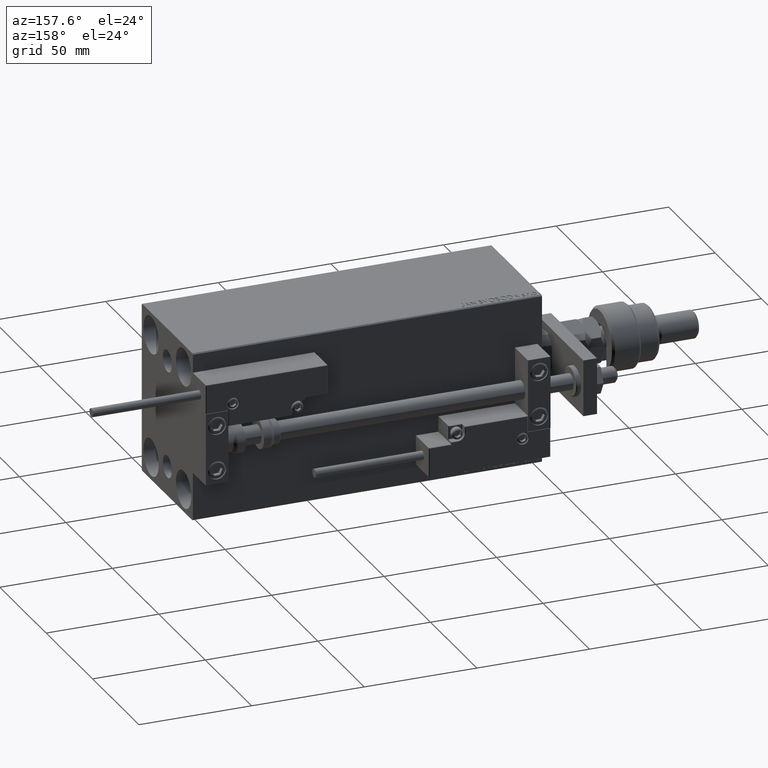
[diagram: clean part render]
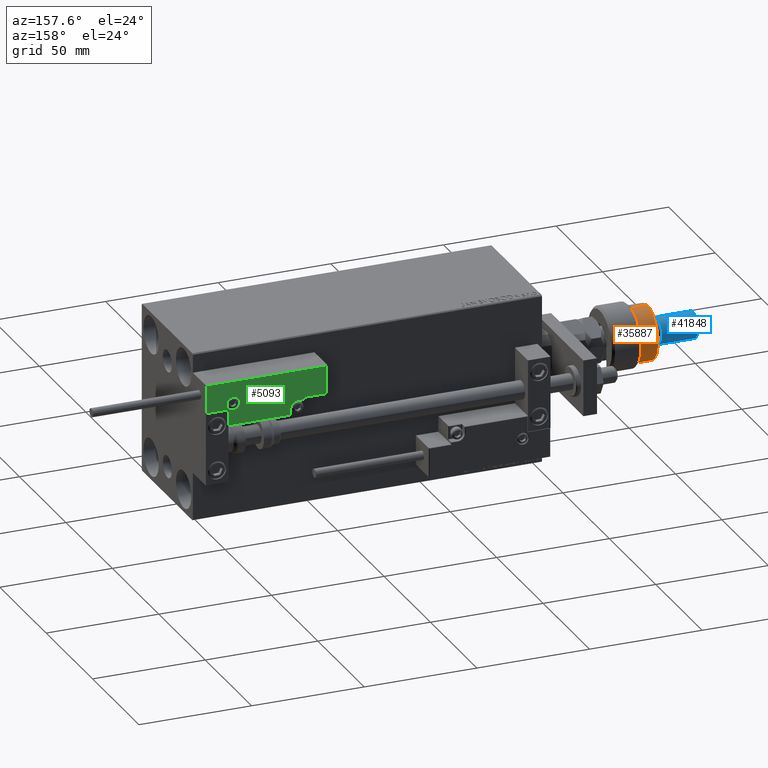
[diagram: same view with three faces highlighted in distinct colors, each labeled with its STEP entity id]
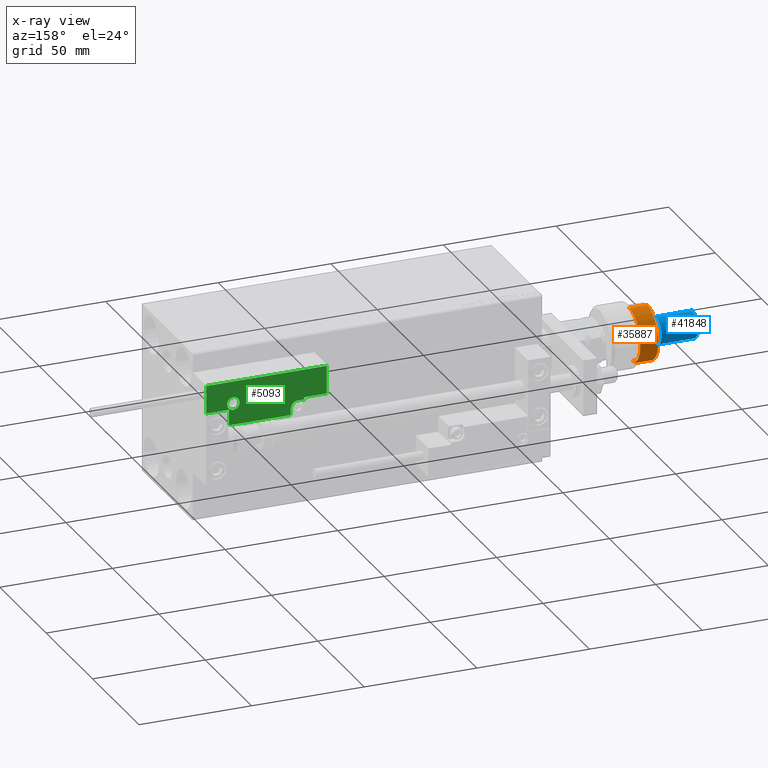
[diagram: x-ray of the same camera — body ghosted, the three highlighted faces saturated]
A machine part, auxiliary view with three faces highlighted in distinct colors.
The next image is the same camera in x-ray (body ghosted, the three faces saturated) — at least one of them is partly hidden behind the body in this view.
Their STEP definitions:

[orange] entity #35887 — the highlighted cylindrical surface (edge-blend (fillet) strip) has radius 12 mm, axis along (1, -0, -0).
#224 = CARTESIAN_POINT ( 'NONE',  ( 0.000000000000000000, 0.000000000000000000, 22.00000000000000000 ) ) ;
#1012 = CYLINDRICAL_SURFACE ( 'NONE', #48425, 12.00000000000000178 ) ;
#1145 = EDGE_CURVE ( 'NONE', #32329, #29369, #25488, .T. ) ;
#4631 = EDGE_CURVE ( 'NONE', #51505, #16986, #42629, .T. ) ;
#4879 = DIRECTION ( 'NONE',  ( 0.000000000000000000, 0.000000000000000000, -1.000000000000000000 ) ) ;
#5833 = VECTOR ( 'NONE', #42384, 1000.000000000000000 ) ;
#6446 = DIRECTION ( 'NONE',  ( 0.000000000000000000, 0.000000000000000000, 1.000000000000000000 ) ) ;
#8891 = DIRECTION ( 'NONE',  ( 0.000000000000000000, 0.000000000000000000, -1.000000000000000000 ) ) ;
#11956 = FACE_OUTER_BOUND ( 'NONE', #25056, .T. ) ;
#12026 = LINE ( 'NONE', #44551, #23525 ) ;
#12354 = CARTESIAN_POINT ( 'NONE',  ( 0.000000000000000000, 0.000000000000000000, 14.50000000000000000 ) ) ;
#13153 = DIRECTION ( 'NONE',  ( -1.000000000000000000, 0.000000000000000000, 0.000000000000000000 ) ) ;
#13186 = ORIENTED_EDGE ( 'NONE', *, *, #1145, .F. ) ;
#14040 = ORIENTED_EDGE ( 'NONE', *, *, #28894, .T. ) ;
#14355 = CARTESIAN_POINT ( 'NONE',  ( -10.39230484541326760, 6.000000000000000000, 13.00000000000000000 ) ) ;
#14862 = LINE ( 'NONE', #19391, #48960 ) ;
#15856 = AXIS2_PLACEMENT_3D ( 'NONE', #20902, #4879, #24636 ) ;
#16986 = VERTEX_POINT ( 'NONE', #14355 ) ;
#19264 = CARTESIAN_POINT ( 'NONE',  ( 12.00000000000000178, 1.469576158976824144E-15, 13.00000000000000000 ) ) ;
#19391 = CARTESIAN_POINT ( 'NONE',  ( 12.00000000000000178, 1.469576158976824144E-15, 22.00000000000000000 ) ) ;
#20902 = CARTESIAN_POINT ( 'NONE',  ( 0.000000000000000000, 0.000000000000000000, 20.99999999999998224 ) ) ;
#22066 = AXIS2_PLACEMENT_3D ( 'NONE', #12354, #8891, #13153 ) ;
#23525 = VECTOR ( 'NONE', #32695, 1000.000000000000000 ) ;
#24272 = EDGE_CURVE ( 'NONE', #41634, #51505, #14862, .T. ) ;
#24636 = DIRECTION ( 'NONE',  ( 1.000000000000000000, 0.000000000000000000, 0.000000000000000000 ) ) ;
#25056 = EDGE_LOOP ( 'NONE', ( #41373, #32083, #32031, #14040, #13186, #45242 ) ) ;
#25488 = CIRCLE ( 'NONE', #22066, 12.00000000000000178 ) ;
#25683 = CARTESIAN_POINT ( 'NONE',  ( 0.000000000000000000, 0.000000000000000000, 13.00000000000000000 ) ) ;
#28489 = DIRECTION ( 'NONE',  ( -0.000000000000000000, -0.000000000000000000, -1.000000000000000000 ) ) ;
#28894 = EDGE_CURVE ( 'NONE', #16986, #29369, #12026, .T. ) ;
#29276 = EDGE_CURVE ( 'NONE', #34643, #41634, #51591, .T. ) ;
#29369 = VERTEX_POINT ( 'NONE', #46456 ) ;
#30138 = LINE ( 'NONE', #49859, #5833 ) ;
#32031 = ORIENTED_EDGE ( 'NONE', *, *, #4631, .T. ) ;
#32083 = ORIENTED_EDGE ( 'NONE', *, *, #24272, .T. ) ;
#32329 = VERTEX_POINT ( 'NONE', #40205 ) ;
#32500 = DIRECTION ( 'NONE',  ( -1.000000000000000000, 0.000000000000000000, 0.000000000000000000 ) ) ;
#32695 = DIRECTION ( 'NONE',  ( 0.000000000000000000, 0.000000000000000000, 1.000000000000000000 ) ) ;
#34643 = VERTEX_POINT ( 'NONE', #50282 ) ;
#35887 = ADVANCED_FACE ( 'NONE', ( #11956 ), #1012, .T. ) ;
#38972 = DIRECTION ( 'NONE',  ( 1.000000000000000000, 0.000000000000000000, 0.000000000000000000 ) ) ;
#40044 = AXIS2_PLACEMENT_3D ( 'NONE', #25683, #6446, #38972 ) ;
#40205 = CARTESIAN_POINT ( 'NONE',  ( -12.00000000000000178, 0.000000000000000000, 14.50000000000000000 ) ) ;
#41373 = ORIENTED_EDGE ( 'NONE', *, *, #29276, .T. ) ;
#41634 = VERTEX_POINT ( 'NONE', #42041 ) ;
#42041 = CARTESIAN_POINT ( 'NONE',  ( 12.00000000000000178, 1.469576158976824144E-15, 20.99999999999998224 ) ) ;
#42384 = DIRECTION ( 'NONE',  ( -0.000000000000000000, -0.000000000000000000, -1.000000000000000000 ) ) ;
#42629 = CIRCLE ( 'NONE', #40044, 12.00000000000000178 ) ;
#44551 = CARTESIAN_POINT ( 'NONE',  ( -10.39230484541326760, 6.000000000000000000, 22.00000000000000000 ) ) ;
#45242 = ORIENTED_EDGE ( 'NONE', *, *, #49767, .F. ) ;
#46456 = CARTESIAN_POINT ( 'NONE',  ( -10.39230484541326582, 5.999999999999998224, 14.50000000000000000 ) ) ;
#48425 = AXIS2_PLACEMENT_3D ( 'NONE', #224, #28489, #32500 ) ;
#48427 = DIRECTION ( 'NONE',  ( -0.000000000000000000, -0.000000000000000000, -1.000000000000000000 ) ) ;
#48960 = VECTOR ( 'NONE', #48427, 1000.000000000000000 ) ;
#49767 = EDGE_CURVE ( 'NONE', #34643, #32329, #30138, .T. ) ;
#49859 = CARTESIAN_POINT ( 'NONE',  ( -12.00000000000000178, 0.000000000000000000, 22.00000000000000000 ) ) ;
#50282 = CARTESIAN_POINT ( 'NONE',  ( -12.00000000000000178, 0.000000000000000000, 20.99999999999998224 ) ) ;
#51505 = VERTEX_POINT ( 'NONE', #19264 ) ;
#51591 = CIRCLE ( 'NONE', #15856, 12.00000000000000178 ) ;

[blue] entity #41848 — the highlighted cylindrical surface (edge-blend (fillet) strip) has radius 6 mm, axis along (1, -0, -0).
#222 = DIRECTION ( 'NONE',  ( -0.000000000000000000, -0.000000000000000000, -1.000000000000000000 ) ) ;
#356 = VERTEX_POINT ( 'NONE', #8620 ) ;
#843 = ORIENTED_EDGE ( 'NONE', *, *, #38413, .T. ) ;
#1702 = VERTEX_POINT ( 'NONE', #17503 ) ;
#1736 = AXIS2_PLACEMENT_3D ( 'NONE', #46134, #18140, #9870 ) ;
#1822 = EDGE_CURVE ( 'NONE', #24750, #1702, #50804, .T. ) ;
#2944 = ORIENTED_EDGE ( 'NONE', *, *, #1822, .T. ) ;
#8620 = CARTESIAN_POINT ( 'NONE',  ( -6.000000000000000888, 0.000000000000000000, 40.99999999999997868 ) ) ;
#9390 = VERTEX_POINT ( 'NONE', #12791 ) ;
#9714 = DIRECTION ( 'NONE',  ( -0.000000000000000000, -0.000000000000000000, -1.000000000000000000 ) ) ;
#9870 = DIRECTION ( 'NONE',  ( 1.000000000000000000, 0.000000000000000000, 0.000000000000000000 ) ) ;
#12221 = DIRECTION ( 'NONE',  ( 0.000000000000000000, 0.000000000000000000, -1.000000000000000000 ) ) ;
#12791 = CARTESIAN_POINT ( 'NONE',  ( -6.000000000000000888, 0.000000000000000000, 24.99999999999999645 ) ) ;
#13022 = CARTESIAN_POINT ( 'NONE',  ( 0.000000000000000000, 0.000000000000000000, 40.99999999999997868 ) ) ;
#13212 = VECTOR ( 'NONE', #222, 1000.000000000000000 ) ;
#16927 = CYLINDRICAL_SURFACE ( 'NONE', #35808, 6.000000000000000888 ) ;
#17021 = DIRECTION ( 'NONE',  ( 1.000000000000000000, 0.000000000000000000, 0.000000000000000000 ) ) ;
#17503 = CARTESIAN_POINT ( 'NONE',  ( 6.000000000000000888, 7.347880794884120722E-16, 24.99999999999999645 ) ) ;
#17982 = EDGE_CURVE ( 'NONE', #356, #9390, #40479, .T. ) ;
#18140 = DIRECTION ( 'NONE',  ( -0.000000000000000000, -0.000000000000000000, 1.000000000000000000 ) ) ;
#22032 = CARTESIAN_POINT ( 'NONE',  ( 6.000000000000000888, 7.347880794884120722E-16, 41.99999999999999289 ) ) ;
#22561 = DIRECTION ( 'NONE',  ( -0.000000000000000000, -0.000000000000000000, -1.000000000000000000 ) ) ;
#24750 = VERTEX_POINT ( 'NONE', #38737 ) ;
#28064 = VECTOR ( 'NONE', #22561, 1000.000000000000000 ) ;
#28412 = ORIENTED_EDGE ( 'NONE', *, *, #36613, .T. ) ;
#32416 = FACE_OUTER_BOUND ( 'NONE', #42074, .T. ) ;
#35413 = ORIENTED_EDGE ( 'NONE', *, *, #17982, .F. ) ;
#35808 = AXIS2_PLACEMENT_3D ( 'NONE', #48655, #9714, #37983 ) ;
#36572 = CIRCLE ( 'NONE', #41670, 6.000000000000000888 ) ;
#36613 = EDGE_CURVE ( 'NONE', #356, #24750, #36572, .T. ) ;
#36759 = CARTESIAN_POINT ( 'NONE',  ( -6.000000000000000888, 0.000000000000000000, 41.99999999999999289 ) ) ;
#37983 = DIRECTION ( 'NONE',  ( -1.000000000000000000, 0.000000000000000000, 0.000000000000000000 ) ) ;
#38413 = EDGE_CURVE ( 'NONE', #1702, #9390, #42608, .T. ) ;
#38737 = CARTESIAN_POINT ( 'NONE',  ( 6.000000000000000888, 7.347880794884120722E-16, 40.99999999999997868 ) ) ;
#40479 = LINE ( 'NONE', #36759, #13212 ) ;
#41670 = AXIS2_PLACEMENT_3D ( 'NONE', #13022, #12221, #17021 ) ;
#41848 = ADVANCED_FACE ( 'NONE', ( #32416 ), #16927, .T. ) ;
#42074 = EDGE_LOOP ( 'NONE', ( #28412, #2944, #843, #35413 ) ) ;
#42608 = CIRCLE ( 'NONE', #1736, 6.000000000000000888 ) ;
#46134 = CARTESIAN_POINT ( 'NONE',  ( 0.000000000000000000, 0.000000000000000000, 24.99999999999999645 ) ) ;
#48655 = CARTESIAN_POINT ( 'NONE',  ( 0.000000000000000000, 0.000000000000000000, 41.99999999999999289 ) ) ;
#50804 = LINE ( 'NONE', #22032, #28064 ) ;

[green] entity #5093 — the highlighted planar face has unit normal (0, 1, -0).
#39 = ORIENTED_EDGE ( 'NONE', *, *, #1993, .T. ) ;
#252 = ORIENTED_EDGE ( 'NONE', *, *, #17324, .T. ) ;
#821 = DIRECTION ( 'NONE',  ( 0.000000000000000000, 1.000000000000000000, -0.000000000000000000 ) ) ;
#1794 = FACE_BOUND ( 'NONE', #9652, .T. ) ;
#1993 = EDGE_CURVE ( 'NONE', #9210, #2941, #25195, .T. ) ;
#2077 = VERTEX_POINT ( 'NONE', #41970 ) ;
#2941 = VERTEX_POINT ( 'NONE', #5959 ) ;
#3347 = VECTOR ( 'NONE', #24662, 1000.000000000000000 ) ;
#3432 = DIRECTION ( 'NONE',  ( 0.000000000000000000, -0.000000000000000000, -1.000000000000000000 ) ) ;
#3548 = ORIENTED_EDGE ( 'NONE', *, *, #39250, .T. ) ;
#3552 = LINE ( 'NONE', #30789, #15715 ) ;
#3606 = EDGE_CURVE ( 'NONE', #6357, #17274, #4254, .T. ) ;
#4254 = LINE ( 'NONE', #33057, #22172 ) ;
#5093 = ADVANCED_FACE ( 'NONE', ( #1794, #34331 ), #50312, .T. ) ;
#5124 = VERTEX_POINT ( 'NONE', #50047 ) ;
#5160 = VECTOR ( 'NONE', #38353, 1000.000000000000000 ) ;
#5650 = EDGE_CURVE ( 'NONE', #2077, #6357, #33288, .T. ) ;
#5959 = CARTESIAN_POINT ( 'NONE',  ( -26.69999999999994600, 7.300000000000005151, 14.00000000000000000 ) ) ;
#5961 = EDGE_LOOP ( 'NONE', ( #52205, #3548, #11988, #7608, #47449, #37252, #34534, #9452, #252, #39, #27596 ) ) ;
#6124 = CARTESIAN_POINT ( 'NONE',  ( -16.69999999999999218, 7.300000000000003375, 14.00000000000000000 ) ) ;
#6327 = CARTESIAN_POINT ( 'NONE',  ( 10.69999999999999929, 3.000000000000003109, 14.00000000000000000 ) ) ;
#6357 = VERTEX_POINT ( 'NONE', #45736 ) ;
#7608 = ORIENTED_EDGE ( 'NONE', *, *, #5650, .T. ) ;
#7945 = DIRECTION ( 'NONE',  ( 0.000000000000000000, -1.000000000000000000, 0.000000000000000000 ) ) ;
#9210 = VERTEX_POINT ( 'NONE', #44257 ) ;
#9452 = ORIENTED_EDGE ( 'NONE', *, *, #38253, .T. ) ;
#9652 = EDGE_LOOP ( 'NONE', ( #28429, #24269 ) ) ;
#11816 = LINE ( 'NONE', #19303, #26663 ) ;
#11988 = ORIENTED_EDGE ( 'NONE', *, *, #23195, .T. ) ;
#12028 = CARTESIAN_POINT ( 'NONE',  ( 26.70000000000006324, 20.00000000000001776, 14.00000000000000000 ) ) ;
#12970 = LINE ( 'NONE', #26282, #35854 ) ;
#14079 = EDGE_CURVE ( 'NONE', #2941, #20225, #11816, .T. ) ;
#14527 = VECTOR ( 'NONE', #23077, 1000.000000000000000 ) ;
#14547 = AXIS2_PLACEMENT_3D ( 'NONE', #18132, #34395, #38911 ) ;
#14557 = VERTEX_POINT ( 'NONE', #40157 ) ;
#14934 = VERTEX_POINT ( 'NONE', #40299 ) ;
#15108 = LINE ( 'NONE', #6327, #42994 ) ;
#15288 = EDGE_CURVE ( 'NONE', #45566, #32755, #19887, .T. ) ;
#15715 = VECTOR ( 'NONE', #47033, 1000.000000000000000 ) ;
#17274 = VERTEX_POINT ( 'NONE', #39551 ) ;
#17324 = EDGE_CURVE ( 'NONE', #14557, #9210, #3552, .T. ) ;
#18132 = CARTESIAN_POINT ( 'NONE',  ( 13.99999999999999822, 3.000000000000002665, 14.00000000000000000 ) ) ;
#18896 = VECTOR ( 'NONE', #7945, 1000.000000000000000 ) ;
#19303 = CARTESIAN_POINT ( 'NONE',  ( -16.99999999999999289, 7.300000000000003375, 14.00000000000000000 ) ) ;
#19887 = CIRCLE ( 'NONE', #33513, 2.800000000000000266 ) ;
#20225 = VERTEX_POINT ( 'NONE', #6124 ) ;
#22072 = DIRECTION ( 'NONE',  ( 1.000000000000000000, 0.000000000000000000, 0.000000000000000000 ) ) ;
#22172 = VECTOR ( 'NONE', #49038, 1000.000000000000000 ) ;
#22339 = DIRECTION ( 'NONE',  ( -0.000000000000000000, 0.000000000000000000, 1.000000000000000000 ) ) ;
#22608 = DIRECTION ( 'NONE',  ( -0.000000000000000000, 1.000000000000000000, -0.000000000000000000 ) ) ;
#23077 = DIRECTION ( 'NONE',  ( 1.000000000000000000, -0.000000000000000000, 0.000000000000000000 ) ) ;
#23195 = EDGE_CURVE ( 'NONE', #43293, #2077, #15108, .T. ) ;
#23552 = EDGE_CURVE ( 'NONE', #32755, #45566, #31940, .T. ) ;
#24104 = DIRECTION ( 'NONE',  ( 1.000000000000000000, -1.734723475976815230E-16, 0.000000000000000000 ) ) ;
#24269 = ORIENTED_EDGE ( 'NONE', *, *, #15288, .T. ) ;
#24548 = CARTESIAN_POINT ( 'NONE',  ( 10.69999999999999929, 0.3000000000000032085, 14.00000000000000000 ) ) ;
#24662 = DIRECTION ( 'NONE',  ( -8.006416042969869188E-16, -1.000000000000000000, 0.000000000000000000 ) ) ;
#25195 = LINE ( 'NONE', #37452, #3347 ) ;
#25465 = CARTESIAN_POINT ( 'NONE',  ( -11.99999999999994849, 9.800000000000004263, 14.00000000000000000 ) ) ;
#25572 = LINE ( 'NONE', #46081, #5160 ) ;
#26021 = DIRECTION ( 'NONE',  ( 1.000000000000000000, -1.734723475976796001E-16, 0.000000000000000000 ) ) ;
#26282 = CARTESIAN_POINT ( 'NONE',  ( 27.00000000000006395, 7.300000000000007816, 14.00000000000000000 ) ) ;
#26663 = VECTOR ( 'NONE', #24104, 1000.000000000000000 ) ;
#27596 = ORIENTED_EDGE ( 'NONE', *, *, #14079, .T. ) ;
#28378 = DIRECTION ( 'NONE',  ( 0.000000000000000000, -0.000000000000000000, -1.000000000000000000 ) ) ;
#28429 = ORIENTED_EDGE ( 'NONE', *, *, #23552, .T. ) ;
#30329 = CARTESIAN_POINT ( 'NONE',  ( 0.000000000000000000, 0.000000000000000000, 14.00000000000000000 ) ) ;
#30789 = CARTESIAN_POINT ( 'NONE',  ( -26.99999999999993605, 19.70000000000002061, 14.00000000000000000 ) ) ;
#31195 = CARTESIAN_POINT ( 'NONE',  ( -14.79999999999994920, 9.800000000000004263, 14.00000000000000000 ) ) ;
#31940 = CIRCLE ( 'NONE', #50638, 2.800000000000000266 ) ;
#32642 = CARTESIAN_POINT ( 'NONE',  ( -14.79999999999994920, 9.800000000000004263, 14.00000000000000000 ) ) ;
#32755 = VERTEX_POINT ( 'NONE', #25465 ) ;
#33057 = CARTESIAN_POINT ( 'NONE',  ( 17.00000000000000000, 6.300000000000003375, 14.00000000000000000 ) ) ;
#33288 = CIRCLE ( 'NONE', #14547, 3.299999999999997158 ) ;
#33513 = AXIS2_PLACEMENT_3D ( 'NONE', #31195, #3432, #43954 ) ;
#34153 = AXIS2_PLACEMENT_3D ( 'NONE', #30329, #22339, #22072 ) ;
#34331 = FACE_OUTER_BOUND ( 'NONE', #5961, .T. ) ;
#34395 = DIRECTION ( 'NONE',  ( 0.000000000000000000, -0.000000000000000000, -1.000000000000000000 ) ) ;
#34534 = ORIENTED_EDGE ( 'NONE', *, *, #39000, .T. ) ;
#35067 = CARTESIAN_POINT ( 'NONE',  ( 11.00000000000000000, 0.3000000000000032085, 14.00000000000000000 ) ) ;
#35812 = VECTOR ( 'NONE', #821, 1000.000000000000000 ) ;
#35854 = VECTOR ( 'NONE', #26021, 1000.000000000000000 ) ;
#36420 = CARTESIAN_POINT ( 'NONE',  ( -17.59999999999994813, 9.800000000000004263, 14.00000000000000000 ) ) ;
#37252 = ORIENTED_EDGE ( 'NONE', *, *, #39651, .T. ) ;
#37452 = CARTESIAN_POINT ( 'NONE',  ( -26.69999999999994600, 7.000000000000005329, 14.00000000000000000 ) ) ;
#37628 = LINE ( 'NONE', #12028, #35812 ) ;
#38253 = EDGE_CURVE ( 'NONE', #5124, #14557, #37628, .T. ) ;
#38353 = DIRECTION ( 'NONE',  ( 9.912705577010318647E-16, 1.000000000000000000, 0.000000000000000000 ) ) ;
#38911 = DIRECTION ( 'NONE',  ( 1.000000000000000000, 0.000000000000000000, 0.000000000000000000 ) ) ;
#39000 = EDGE_CURVE ( 'NONE', #44703, #5124, #12970, .T. ) ;
#39052 = LINE ( 'NONE', #35067, #14527 ) ;
#39250 = EDGE_CURVE ( 'NONE', #14934, #43293, #39052, .T. ) ;
#39353 = CARTESIAN_POINT ( 'NONE',  ( 16.69999999999999929, 7.300000000000009592, 14.00000000000000000 ) ) ;
#39551 = CARTESIAN_POINT ( 'NONE',  ( 16.69999999999999929, 6.300000000000003375, 14.00000000000000000 ) ) ;
#39651 = EDGE_CURVE ( 'NONE', #17274, #44703, #25572, .T. ) ;
#39830 = DIRECTION ( 'NONE',  ( 1.000000000000000000, 0.000000000000000000, 0.000000000000000000 ) ) ;
#40157 = CARTESIAN_POINT ( 'NONE',  ( 26.70000000000006324, 19.70000000000001705, 14.00000000000000000 ) ) ;
#40299 = CARTESIAN_POINT ( 'NONE',  ( -16.69999999999999218, 0.3000000000000032085, 14.00000000000000000 ) ) ;
#41970 = CARTESIAN_POINT ( 'NONE',  ( 10.69999999999999929, 3.000000000000003109, 14.00000000000000000 ) ) ;
#42994 = VECTOR ( 'NONE', #22608, 1000.000000000000000 ) ;
#43293 = VERTEX_POINT ( 'NONE', #24548 ) ;
#43954 = DIRECTION ( 'NONE',  ( 1.000000000000000000, 0.000000000000000000, 0.000000000000000000 ) ) ;
#44257 = CARTESIAN_POINT ( 'NONE',  ( -26.69999999999993534, 19.70000000000002061, 14.00000000000000000 ) ) ;
#44466 = CARTESIAN_POINT ( 'NONE',  ( -16.69999999999999218, 3.252606517456513302E-15, 14.00000000000000000 ) ) ;
#44703 = VERTEX_POINT ( 'NONE', #39353 ) ;
#45267 = EDGE_CURVE ( 'NONE', #20225, #14934, #47672, .T. ) ;
#45566 = VERTEX_POINT ( 'NONE', #36420 ) ;
#45736 = CARTESIAN_POINT ( 'NONE',  ( 13.99999999999999822, 6.300000000000001599, 14.00000000000000000 ) ) ;
#46081 = CARTESIAN_POINT ( 'NONE',  ( 16.69999999999999929, 7.000000000000009770, 14.00000000000000000 ) ) ;
#47033 = DIRECTION ( 'NONE',  ( -1.000000000000000000, 6.424901762877063495E-17, -0.000000000000000000 ) ) ;
#47449 = ORIENTED_EDGE ( 'NONE', *, *, #3606, .T. ) ;
#47672 = LINE ( 'NONE', #44466, #18896 ) ;
#49038 = DIRECTION ( 'NONE',  ( 1.000000000000000000, 5.782411586589357639E-16, -0.000000000000000000 ) ) ;
#50047 = CARTESIAN_POINT ( 'NONE',  ( 26.70000000000006324, 7.300000000000007816, 14.00000000000000000 ) ) ;
#50312 = PLANE ( 'NONE',  #34153 ) ;
#50638 = AXIS2_PLACEMENT_3D ( 'NONE', #32642, #28378, #39830 ) ;
#52205 = ORIENTED_EDGE ( 'NONE', *, *, #45267, .T. ) ;